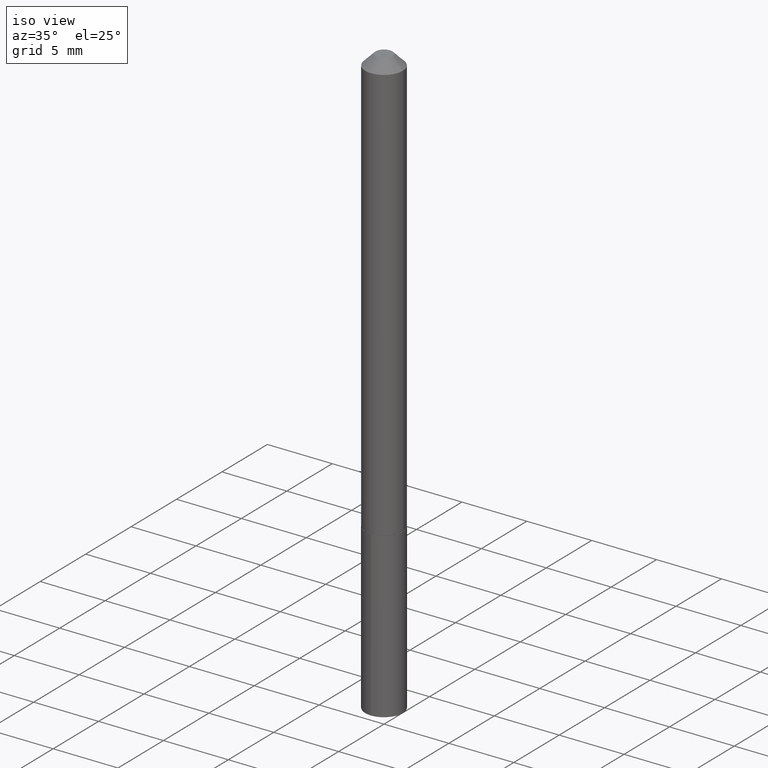
[diagram: clean part render]
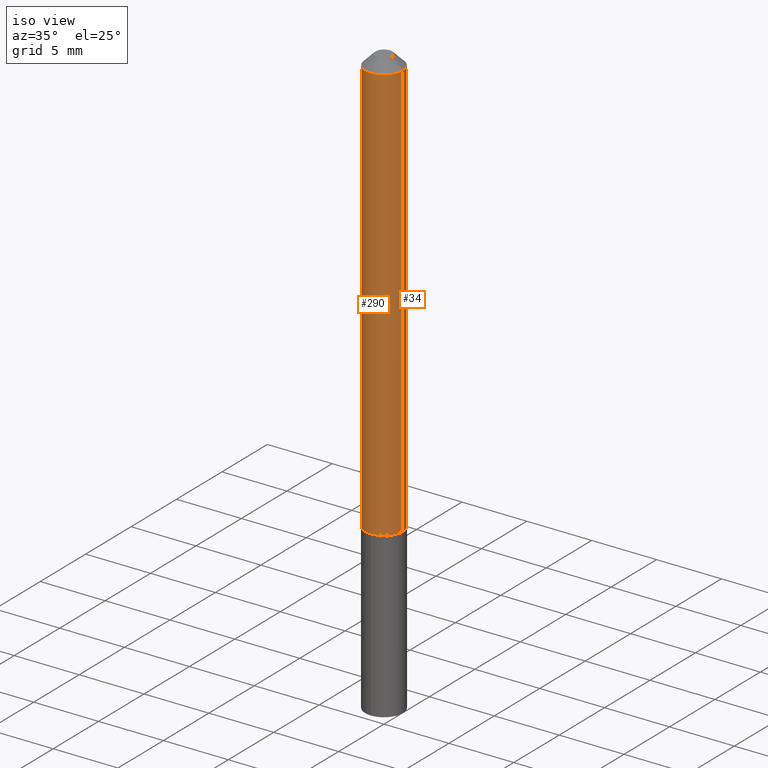
[diagram: same view with one multi-face feature highlighted, each face labeled with its STEP entity id]
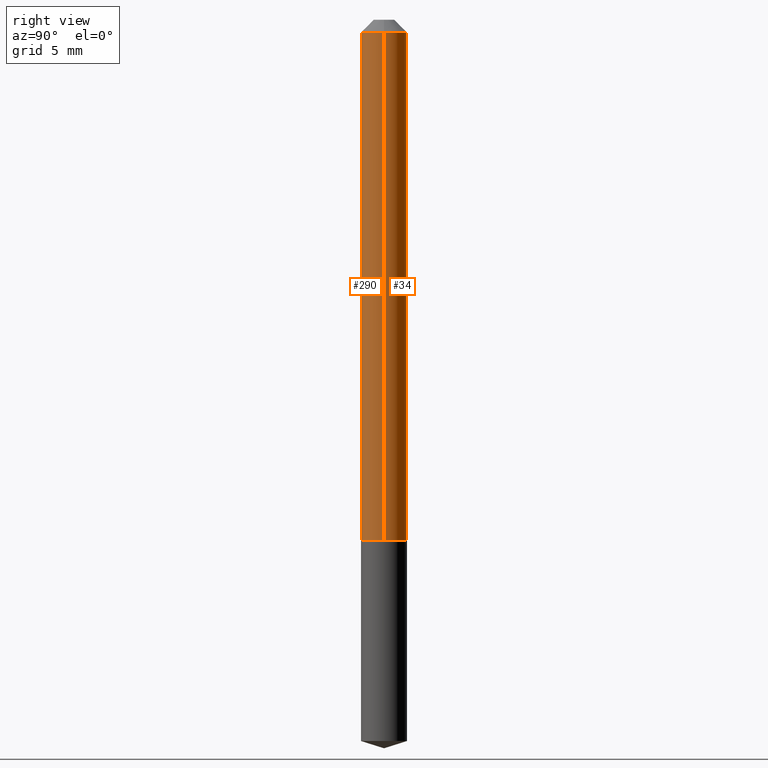
[diagram: same view with one multi-face feature highlighted, each face labeled with its STEP entity id]
A machine part, iso view. The highlighted faces form ONE feature: a constant-radius fillet chain: 2 tangent blend faces with common blend radius 1.4503 mm. The faces share edges in the B-rep.
A second angle (right view) of the same feature is appended — it is thin or edge-on in the first view.
Their STEP definitions:
[1] entity #34 (Cylinder):
#18 = DIRECTION ( 'NONE',  ( -2.445468806185136597E-29, 3.491481338843145583E-15, 1.000000000000000000 ) ) ;
#22 = VERTEX_POINT ( 'NONE', #32 ) ;
#32 = CARTESIAN_POINT ( 'NONE',  ( -0.05710000000000000492, -1.909219512567458236E-15, -0.03125000000000020817 ) ) ;
#34 = ADVANCED_FACE ( 'NONE', ( #316 ), #100, .T. ) ;
#56 = AXIS2_PLACEMENT_3D ( 'NONE', #333, #123, #390 ) ;
#73 = VERTEX_POINT ( 'NONE', #256 ) ;
#75 = CIRCLE ( 'NONE', #327, 0.05710000000000015757 ) ;
#79 = LINE ( 'NONE', #320, #308 ) ;
#87 = ORIENTED_EDGE ( 'NONE', *, *, #277, .F. ) ;
#100 = CYLINDRICAL_SURFACE ( 'NONE', #321, 0.05710000000000008125 ) ;
#101 = DIRECTION ( 'NONE',  ( -2.445468806185136597E-29, 3.491481338843145583E-15, 1.000000000000000000 ) ) ;
#110 = VECTOR ( 'NONE', #284, 39.37007874015748143 ) ;
#121 = ORIENTED_EDGE ( 'NONE', *, *, #242, .T. ) ;
#123 = DIRECTION ( 'NONE',  ( -2.445468806185136597E-29, 3.491481338843145583E-15, 1.000000000000000000 ) ) ;
#140 = DIRECTION ( 'NONE',  ( 1.000000000000000000, -6.982962677686266711E-15, 4.876176775795935232E-29 ) ) ;
#162 = DIRECTION ( 'NONE',  ( 1.000000000000000000, -6.982962677686274599E-15, 0.000000000000000000 ) ) ;
#167 = CARTESIAN_POINT ( 'NONE',  ( 3.166393010248514010E-29, -4.520770037534104713E-15, -1.294799999999999729 ) ) ;
#168 = CIRCLE ( 'NONE', #56, 0.05710000000000000492 ) ;
#173 = VERTEX_POINT ( 'NONE', #368 ) ;
#188 = EDGE_CURVE ( 'NONE', #173, #22, #354, .T. ) ;
#206 = ORIENTED_EDGE ( 'NONE', *, *, #376, .F. ) ;
#211 = CARTESIAN_POINT ( 'NONE',  ( 0.05710000000000015757, -4.919497206429991905E-15, -1.294799999999999729 ) ) ;
#239 = EDGE_LOOP ( 'NONE', ( #121, #355, #87, #206 ) ) ;
#242 = EDGE_CURVE ( 'NONE', #324, #173, #75, .T. ) ;
#256 = CARTESIAN_POINT ( 'NONE',  ( 0.05710000000000000492, -5.078359607347349125E-16, -0.03125000000000020817 ) ) ;
#277 = EDGE_CURVE ( 'NONE', #73, #22, #168, .T. ) ;
#281 = CARTESIAN_POINT ( 'NONE',  ( 0.000000000000000000, 0.000000000000000000, 0.000000000000000000 ) ) ;
#284 = DIRECTION ( 'NONE',  ( -2.445468806185136877E-29, 3.491481338843145188E-15, 1.000000000000000000 ) ) ;
#308 = VECTOR ( 'NONE', #387, 39.37007874015748143 ) ;
#314 = CARTESIAN_POINT ( 'NONE',  ( -0.05710000000000008125, 4.057199021190177834E-16, -2.808711936535555144E-30 ) ) ;
#316 = FACE_OUTER_BOUND ( 'NONE', #239, .T. ) ;
#320 = CARTESIAN_POINT ( 'NONE',  ( 0.05710000000000008125, -3.987271688958864035E-16, 2.784296938979483082E-30 ) ) ;
#321 = AXIS2_PLACEMENT_3D ( 'NONE', #281, #101, #140 ) ;
#324 = VERTEX_POINT ( 'NONE', #211 ) ;
#327 = AXIS2_PLACEMENT_3D ( 'NONE', #167, #18, #162 ) ;
#333 = CARTESIAN_POINT ( 'NONE',  ( 7.642090019328602662E-31, -1.091087918388490267E-16, -0.03125000000000020817 ) ) ;
#354 = LINE ( 'NONE', #314, #110 ) ;
#355 = ORIENTED_EDGE ( 'NONE', *, *, #188, .T. ) ;
#368 = CARTESIAN_POINT ( 'NONE',  ( -0.05710000000000015757, -4.115050135415085648E-15, -1.294799999999999729 ) ) ;
#376 = EDGE_CURVE ( 'NONE', #324, #73, #79, .T. ) ;
#387 = DIRECTION ( 'NONE',  ( -2.445468806185136877E-29, 3.491481338843145188E-15, 1.000000000000000000 ) ) ;
#390 = DIRECTION ( 'NONE',  ( 1.000000000000000000, -6.982962677686266711E-15, 0.000000000000000000 ) ) ;
[2] entity #290 (Cylinder):
#13 = DIRECTION ( 'NONE',  ( -2.445468806185136597E-29, 3.491481338843145583E-15, 1.000000000000000000 ) ) ;
#22 = VERTEX_POINT ( 'NONE', #32 ) ;
#32 = CARTESIAN_POINT ( 'NONE',  ( -0.05710000000000000492, -1.909219512567458236E-15, -0.03125000000000020817 ) ) ;
#49 = DIRECTION ( 'NONE',  ( 1.000000000000000000, -6.982962677686266711E-15, 4.876176775795935232E-29 ) ) ;
#73 = VERTEX_POINT ( 'NONE', #256 ) ;
#79 = LINE ( 'NONE', #320, #308 ) ;
#86 = AXIS2_PLACEMENT_3D ( 'NONE', #344, #98, #129 ) ;
#97 = AXIS2_PLACEMENT_3D ( 'NONE', #326, #282, #49 ) ;
#98 = DIRECTION ( 'NONE',  ( -2.445468806185136597E-29, 3.491481338843145583E-15, 1.000000000000000000 ) ) ;
#110 = VECTOR ( 'NONE', #284, 39.37007874015748143 ) ;
#129 = DIRECTION ( 'NONE',  ( 1.000000000000000000, -6.982962677686266711E-15, 0.000000000000000000 ) ) ;
#145 = AXIS2_PLACEMENT_3D ( 'NONE', #350, #13, #346 ) ;
#173 = VERTEX_POINT ( 'NONE', #368 ) ;
#180 = ORIENTED_EDGE ( 'NONE', *, *, #188, .F. ) ;
#188 = EDGE_CURVE ( 'NONE', #173, #22, #354, .T. ) ;
#199 = CYLINDRICAL_SURFACE ( 'NONE', #97, 0.05710000000000008125 ) ;
#209 = ORIENTED_EDGE ( 'NONE', *, *, #341, .T. ) ;
#211 = CARTESIAN_POINT ( 'NONE',  ( 0.05710000000000015757, -4.919497206429991905E-15, -1.294799999999999729 ) ) ;
#238 = CIRCLE ( 'NONE', #145, 0.05710000000000015757 ) ;
#256 = CARTESIAN_POINT ( 'NONE',  ( 0.05710000000000000492, -5.078359607347349125E-16, -0.03125000000000020817 ) ) ;
#262 = EDGE_LOOP ( 'NONE', ( #180, #209, #364, #366 ) ) ;
#269 = FACE_OUTER_BOUND ( 'NONE', #262, .T. ) ;
#282 = DIRECTION ( 'NONE',  ( -2.445468806185136597E-29, 3.491481338843145583E-15, 1.000000000000000000 ) ) ;
#284 = DIRECTION ( 'NONE',  ( -2.445468806185136877E-29, 3.491481338843145188E-15, 1.000000000000000000 ) ) ;
#290 = ADVANCED_FACE ( 'NONE', ( #269 ), #199, .T. ) ;
#308 = VECTOR ( 'NONE', #387, 39.37007874015748143 ) ;
#314 = CARTESIAN_POINT ( 'NONE',  ( -0.05710000000000008125, 4.057199021190177834E-16, -2.808711936535555144E-30 ) ) ;
#320 = CARTESIAN_POINT ( 'NONE',  ( 0.05710000000000008125, -3.987271688958864035E-16, 2.784296938979483082E-30 ) ) ;
#323 = EDGE_CURVE ( 'NONE', #22, #73, #337, .T. ) ;
#324 = VERTEX_POINT ( 'NONE', #211 ) ;
#326 = CARTESIAN_POINT ( 'NONE',  ( 0.000000000000000000, 0.000000000000000000, 0.000000000000000000 ) ) ;
#337 = CIRCLE ( 'NONE', #86, 0.05710000000000000492 ) ;
#341 = EDGE_CURVE ( 'NONE', #173, #324, #238, .T. ) ;
#344 = CARTESIAN_POINT ( 'NONE',  ( 7.642090019328602662E-31, -1.091087918388490267E-16, -0.03125000000000020817 ) ) ;
#346 = DIRECTION ( 'NONE',  ( 1.000000000000000000, -6.982962677686274599E-15, 0.000000000000000000 ) ) ;
#350 = CARTESIAN_POINT ( 'NONE',  ( 3.166393010248514010E-29, -4.520770037534104713E-15, -1.294799999999999729 ) ) ;
#354 = LINE ( 'NONE', #314, #110 ) ;
#364 = ORIENTED_EDGE ( 'NONE', *, *, #376, .T. ) ;
#366 = ORIENTED_EDGE ( 'NONE', *, *, #323, .F. ) ;
#368 = CARTESIAN_POINT ( 'NONE',  ( -0.05710000000000015757, -4.115050135415085648E-15, -1.294799999999999729 ) ) ;
#376 = EDGE_CURVE ( 'NONE', #324, #73, #79, .T. ) ;
#387 = DIRECTION ( 'NONE',  ( -2.445468806185136877E-29, 3.491481338843145188E-15, 1.000000000000000000 ) ) ;